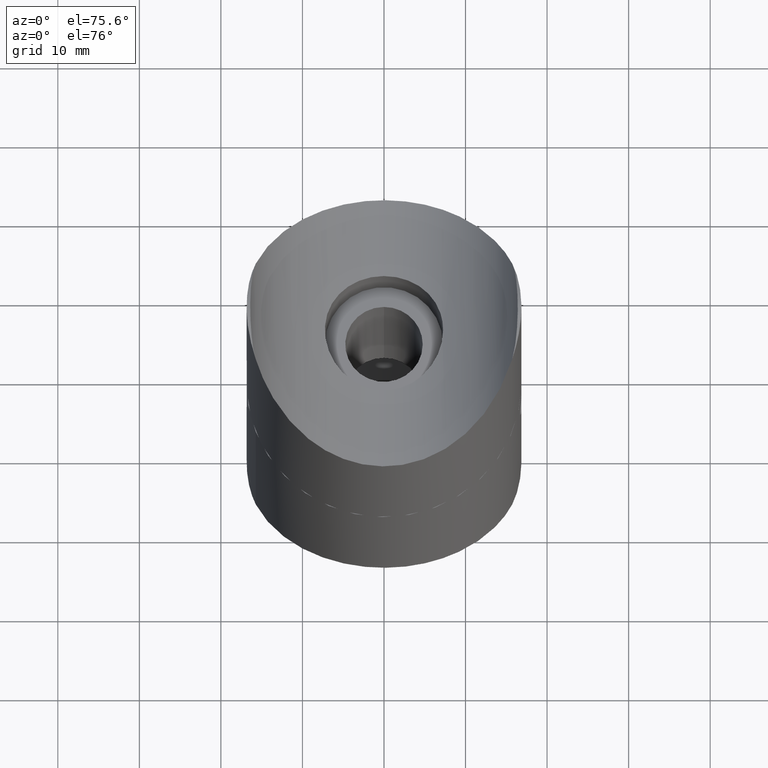
[diagram: clean part render]
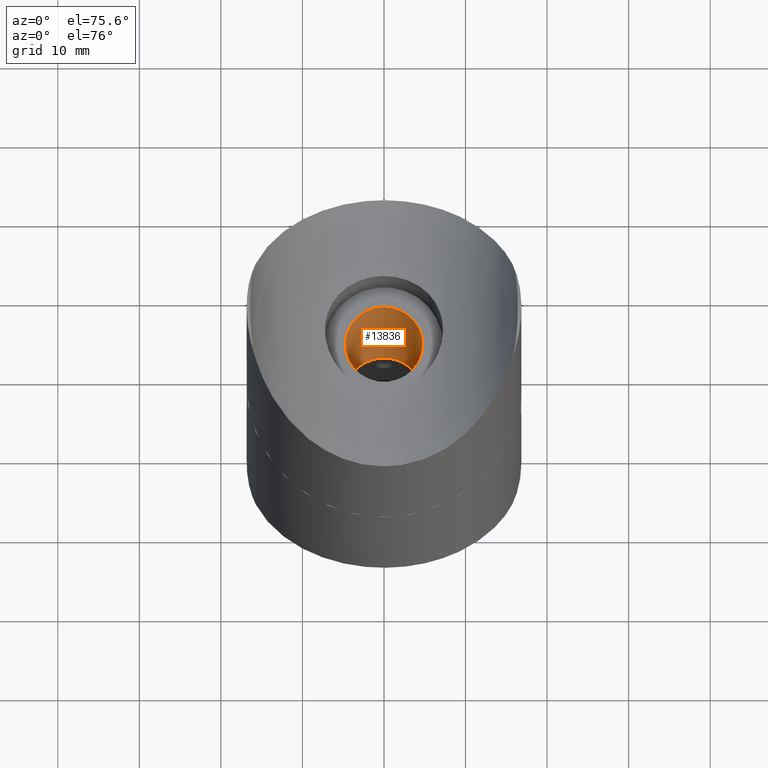
[diagram: same view with one face highlighted and labeled with its STEP entity id]
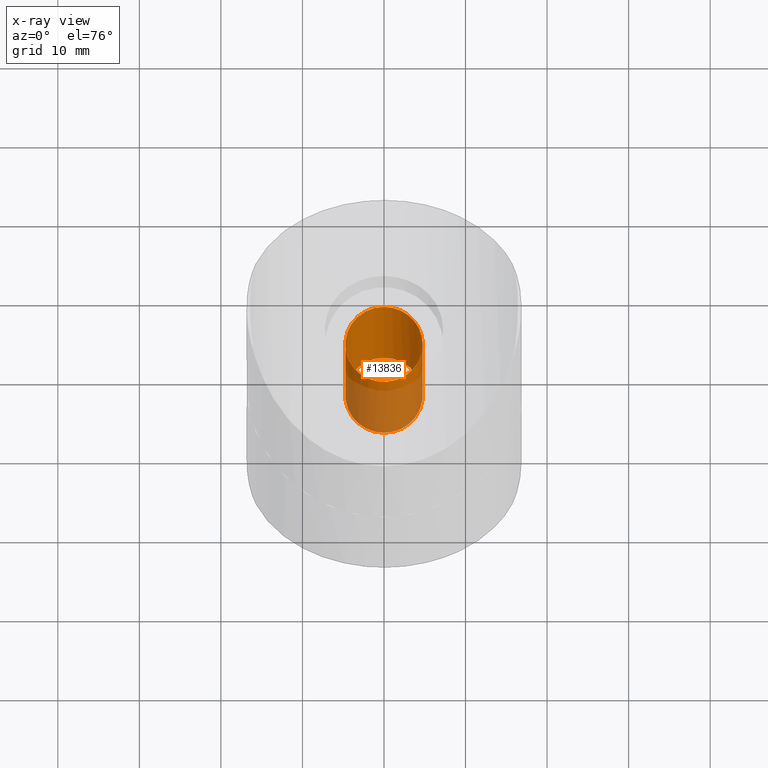
[diagram: x-ray of the same camera — body ghosted, the highlighted face saturated]
A machine part, auxiliary view. The second image highlights one B-rep face of the part: STEP entity #13836.
The next image is the same camera in x-ray: the body ghosted, the highlighted face saturated — about 40% of this face is hidden behind the body in this view.
In plain terms, the highlighted cylindrical surface (bore or boss wall) has radius 4.75 mm, axis along (-0, -0, -1).
Its self-contained STEP definition (entity closure, byte-faithful):
#914 = AXIS2_PLACEMENT_3D ( 'NONE', #10228, #5973, #3625 ) ;
#1154 = CIRCLE ( 'NONE', #914, 4.750000000000000000 ) ;
#1192 = CARTESIAN_POINT ( 'NONE',  ( 4.750000000000000000, 0.000000000000000000, 19.50000000000000355 ) ) ;
#3411 = FACE_OUTER_BOUND ( 'NONE', #8437, .T. ) ;
#3589 = FACE_OUTER_BOUND ( 'NONE', #11550, .T. ) ;
#3625 = DIRECTION ( 'NONE',  ( 0.000000000000000000, 1.000000000000000000, 0.000000000000000000 ) ) ;
#4361 = CARTESIAN_POINT ( 'NONE',  ( 0.000000000000000000, 4.750000000000000000, -5.624999999999944933 ) ) ;
#5327 = ORIENTED_EDGE ( 'NONE', *, *, #12455, .F. ) ;
#5973 = DIRECTION ( 'NONE',  ( -0.000000000000000000, 4.123985650018866956E-18, -1.000000000000000000 ) ) ;
#6091 = DIRECTION ( 'NONE',  ( 1.000000000000000000, 0.000000000000000000, 0.000000000000000000 ) ) ;
#6164 = CYLINDRICAL_SURFACE ( 'NONE', #12085, 4.750000000000000000 ) ;
#7323 = CARTESIAN_POINT ( 'NONE',  ( 0.000000000000000000, 0.000000000000000000, 46.20000000000000284 ) ) ;
#8254 = ORIENTED_EDGE ( 'NONE', *, *, #10532, .T. ) ;
#8437 = EDGE_LOOP ( 'NONE', ( #8254 ) ) ;
#9546 = DIRECTION ( 'NONE',  ( -0.000000000000000000, -0.000000000000000000, -1.000000000000000000 ) ) ;
#10228 = CARTESIAN_POINT ( 'NONE',  ( 0.000000000000000000, 2.319741928135590187E-17, -5.624999999999944933 ) ) ;
#10347 = CARTESIAN_POINT ( 'NONE',  ( 0.000000000000000000, 0.000000000000000000, 19.50000000000000355 ) ) ;
#10532 = EDGE_CURVE ( 'NONE', #13044, #13044, #1154, .T. ) ;
#11550 = EDGE_LOOP ( 'NONE', ( #5327 ) ) ;
#11954 = DIRECTION ( 'NONE',  ( -1.000000000000000000, 0.000000000000000000, 0.000000000000000000 ) ) ;
#12085 = AXIS2_PLACEMENT_3D ( 'NONE', #7323, #9546, #11954 ) ;
#12455 = EDGE_CURVE ( 'NONE', #14244, #14244, #13030, .T. ) ;
#12541 = DIRECTION ( 'NONE',  ( -0.000000000000000000, -0.000000000000000000, -1.000000000000000000 ) ) ;
#12916 = AXIS2_PLACEMENT_3D ( 'NONE', #10347, #12541, #6091 ) ;
#13030 = CIRCLE ( 'NONE', #12916, 4.750000000000000000 ) ;
#13044 = VERTEX_POINT ( 'NONE', #4361 ) ;
#13836 = ADVANCED_FACE ( 'NONE', ( #3589, #3411 ), #6164, .F. ) ;
#14244 = VERTEX_POINT ( 'NONE', #1192 ) ;